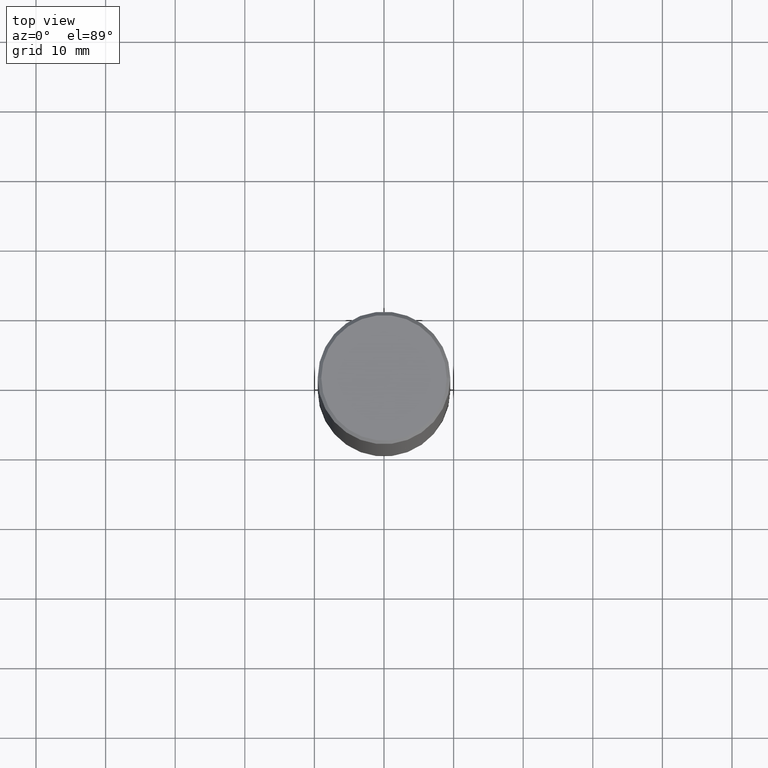
[diagram: clean part render]
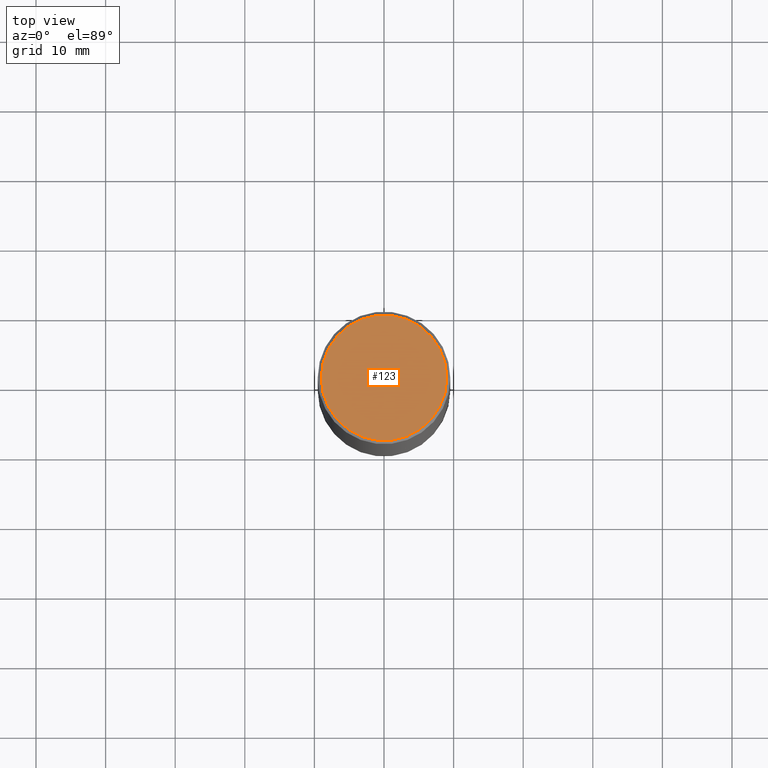
[diagram: same view with one face highlighted and labeled with its STEP entity id]
A machine part, top view. The second image highlights one B-rep face of the part: STEP entity #123.
In plain terms, the highlighted planar face has unit normal (0, -0, -1).
Its self-contained STEP definition (entity closure, byte-faithful):
#16 = DIRECTION ( 'NONE',  ( -1.000000000000000000, 6.982962677686265922E-15, -4.876176775795935793E-29 ) ) ;
#41 = VERTEX_POINT ( 'NONE', #344 ) ;
#49 = DIRECTION ( 'NONE',  ( 2.438088387897960049E-29, -3.491481338843145188E-15, -1.000000000000000000 ) ) ;
#55 = CIRCLE ( 'NONE', #216, 0.3549999999999997047 ) ;
#59 = ORIENTED_EDGE ( 'NONE', *, *, #99, .T. ) ;
#69 = VERTEX_POINT ( 'NONE', #150 ) ;
#80 = CIRCLE ( 'NONE', #280, 0.3549999999999997047 ) ;
#99 = EDGE_CURVE ( 'NONE', #69, #41, #55, .T. ) ;
#106 = DIRECTION ( 'NONE',  ( -2.445468806185136597E-29, 3.491481338843145583E-15, 1.000000000000000000 ) ) ;
#123 = ADVANCED_FACE ( 'NONE', ( #269 ), #388, .F. ) ;
#131 = EDGE_LOOP ( 'NONE', ( #59, #381 ) ) ;
#150 = CARTESIAN_POINT ( 'NONE',  ( -0.3549999999999997047, 2.513866563967053491E-15, -1.745853245838993482E-29 ) ) ;
#216 = AXIS2_PLACEMENT_3D ( 'NONE', #264, #106, #274 ) ;
#257 = DIRECTION ( 'NONE',  ( 1.000000000000000000, -6.982962677686265922E-15, 4.876176775795935793E-29 ) ) ;
#264 = CARTESIAN_POINT ( 'NONE',  ( 0.000000000000000000, 0.000000000000000000, 0.000000000000000000 ) ) ;
#269 = FACE_OUTER_BOUND ( 'NONE', #131, .T. ) ;
#274 = DIRECTION ( 'NONE',  ( 1.000000000000000000, -6.982962677686265922E-15, 4.876176775795935793E-29 ) ) ;
#277 = DIRECTION ( 'NONE',  ( -2.445468806185136597E-29, 3.491481338843145583E-15, 1.000000000000000000 ) ) ;
#280 = AXIS2_PLACEMENT_3D ( 'NONE', #390, #277, #257 ) ;
#320 = CARTESIAN_POINT ( 'NONE',  ( 2.478951750578622237E-15, 0.3549999999999997047, -1.239475875289315654E-15 ) ) ;
#344 = CARTESIAN_POINT ( 'NONE',  ( 0.3549999999999997047, -2.538996582575039076E-15, 1.754627344940449403E-29 ) ) ;
#358 = EDGE_CURVE ( 'NONE', #41, #69, #80, .T. ) ;
#380 = AXIS2_PLACEMENT_3D ( 'NONE', #320, #49, #16 ) ;
#381 = ORIENTED_EDGE ( 'NONE', *, *, #358, .T. ) ;
#388 = PLANE ( 'NONE',  #380 ) ;
#390 = CARTESIAN_POINT ( 'NONE',  ( 0.000000000000000000, 0.000000000000000000, 0.000000000000000000 ) ) ;